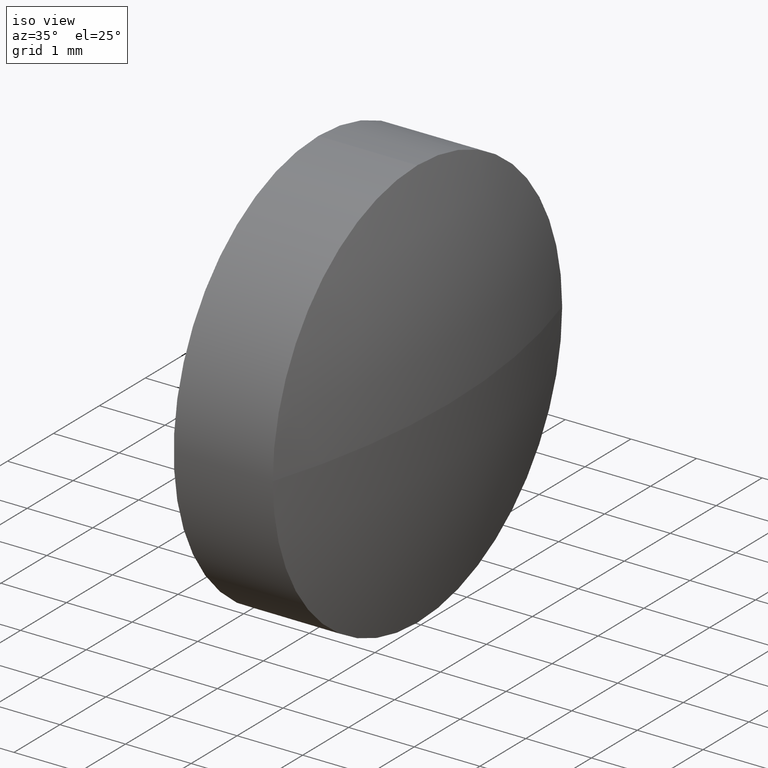
[diagram: clean part render]
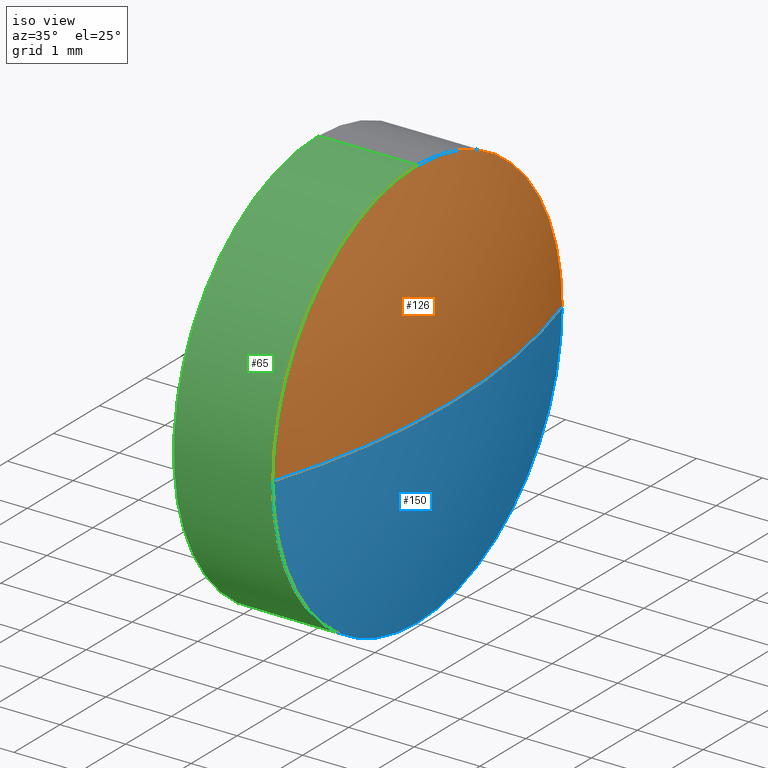
[diagram: same view with three faces highlighted in distinct colors, each labeled with its STEP entity id]
A machine part, iso view with three faces highlighted in distinct colors.
Their STEP definitions:

[orange] entity #126 — the highlighted spherical surface has radius 10.37 mm.
#1 = CARTESIAN_POINT ( 'NONE',  ( 499.5865941383895000, 112.7888820155200000, 0.0000000000000000000 ) ) ;
#6 = DIRECTION ( 'NONE',  ( -0.0000000000000000000, 0.0000000000000000000, 1.000000000000000000 ) ) ;
#12 = FACE_OUTER_BOUND ( 'NONE', #133, .T. ) ;
#17 = CARTESIAN_POINT ( 'NONE',  ( 499.0965941383895500, 112.7888820155200200, 0.0000000000000000000 ) ) ;
#21 = DIRECTION ( 'NONE',  ( 1.000000000000000000, 0.0000000000000000000, 0.0000000000000000000 ) ) ;
#22 = EDGE_CURVE ( 'NONE', #118, #127, #58, .T. ) ;
#36 = CIRCLE ( 'NONE', #124, 10.36999999999999000 ) ;
#38 = VERTEX_POINT ( 'NONE', #84 ) ;
#51 = DIRECTION ( 'NONE',  ( 0.0000000000000000000, 0.0000000000000000000, 1.000000000000000000 ) ) ;
#53 = CARTESIAN_POINT ( 'NONE',  ( 499.0965941383895500, 112.7888820155200200, 0.0000000000000000000 ) ) ;
#57 = CARTESIAN_POINT ( 'NONE',  ( 489.2165941383895500, 112.7888820155200000, 0.0000000000000000000 ) ) ;
#58 = CIRCLE ( 'NONE', #170, 10.36999999999999000 ) ;
#63 = EDGE_CURVE ( 'NONE', #123, #127, #94, .T. ) ;
#66 = CARTESIAN_POINT ( 'NONE',  ( 499.0965941383895500, 115.9388820155200200, 0.0000000000000000000 ) ) ;
#71 = CARTESIAN_POINT ( 'NONE',  ( 499.0965941383895500, 112.7888820155200200, 3.149999999999999900 ) ) ;
#76 = EDGE_CURVE ( 'NONE', #38, #123, #135, .T. ) ;
#82 = DIRECTION ( 'NONE',  ( -1.000000000000000000, -0.0000000000000000000, -0.0000000000000000000 ) ) ;
#84 = CARTESIAN_POINT ( 'NONE',  ( 499.0965941383895500, 109.6388820155200200, -3.857637417314150900E-016 ) ) ;
#93 = DIRECTION ( 'NONE',  ( -1.000000000000000000, -0.0000000000000000000, -0.0000000000000000000 ) ) ;
#94 = CIRCLE ( 'NONE', #105, 3.149999999999999900 ) ;
#105 = AXIS2_PLACEMENT_3D ( 'NONE', #17, #82, #51 ) ;
#116 = DIRECTION ( 'NONE',  ( 0.0000000000000000000, 1.000000000000000000, 1.224646799147353900E-016 ) ) ;
#118 = VERTEX_POINT ( 'NONE', #1 ) ;
#119 = AXIS2_PLACEMENT_3D ( 'NONE', #53, #93, #147 ) ;
#120 = AXIS2_PLACEMENT_3D ( 'NONE', #57, #125, #155 ) ;
#123 = VERTEX_POINT ( 'NONE', #71 ) ;
#124 = AXIS2_PLACEMENT_3D ( 'NONE', #153, #165, #116 ) ;
#125 = DIRECTION ( 'NONE',  ( -0.0000000000000000000, 0.0000000000000000000, -1.000000000000000000 ) ) ;
#126 = ADVANCED_FACE ( 'NONE', ( #12 ), #160, .T. ) ;
#127 = VERTEX_POINT ( 'NONE', #66 ) ;
#133 = EDGE_LOOP ( 'NONE', ( #144, #176, #158, #184 ) ) ;
#135 = CIRCLE ( 'NONE', #119, 3.149999999999999900 ) ;
#144 = ORIENTED_EDGE ( 'NONE', *, *, #162, .F. ) ;
#147 = DIRECTION ( 'NONE',  ( 0.0000000000000000000, 0.0000000000000000000, 1.000000000000000000 ) ) ;
#153 = CARTESIAN_POINT ( 'NONE',  ( 489.2165941383895500, 112.7888820155200000, 0.0000000000000000000 ) ) ;
#155 = DIRECTION ( 'NONE',  ( 0.0000000000000000000, 1.000000000000000000, 0.0000000000000000000 ) ) ;
#158 = ORIENTED_EDGE ( 'NONE', *, *, #63, .F. ) ;
#160 = SPHERICAL_SURFACE ( 'NONE', #120, 10.36999999999999700 ) ;
#162 = EDGE_CURVE ( 'NONE', #118, #38, #36, .T. ) ;
#165 = DIRECTION ( 'NONE',  ( 0.0000000000000000000, 1.224646799147353200E-016, -1.000000000000000000 ) ) ;
#170 = AXIS2_PLACEMENT_3D ( 'NONE', #172, #6, #21 ) ;
#172 = CARTESIAN_POINT ( 'NONE',  ( 489.2165941383895500, 112.7888820155200000, 0.0000000000000000000 ) ) ;
#176 = ORIENTED_EDGE ( 'NONE', *, *, #22, .T. ) ;
#184 = ORIENTED_EDGE ( 'NONE', *, *, #76, .F. ) ;

[blue] entity #150 — the highlighted spherical surface has radius 10.37 mm.
#1 = CARTESIAN_POINT ( 'NONE',  ( 499.5865941383895000, 112.7888820155200000, 0.0000000000000000000 ) ) ;
#4 = CARTESIAN_POINT ( 'NONE',  ( 499.0965941383895500, 112.7888820155200200, 0.0000000000000000000 ) ) ;
#6 = DIRECTION ( 'NONE',  ( -0.0000000000000000000, 0.0000000000000000000, 1.000000000000000000 ) ) ;
#10 = CIRCLE ( 'NONE', #114, 3.149999999999999900 ) ;
#11 = DIRECTION ( 'NONE',  ( -1.000000000000000000, -0.0000000000000000000, -0.0000000000000000000 ) ) ;
#21 = DIRECTION ( 'NONE',  ( 1.000000000000000000, 0.0000000000000000000, 0.0000000000000000000 ) ) ;
#22 = EDGE_CURVE ( 'NONE', #118, #127, #58, .T. ) ;
#26 = DIRECTION ( 'NONE',  ( -0.0000000000000000000, 0.0000000000000000000, -1.000000000000000000 ) ) ;
#36 = CIRCLE ( 'NONE', #124, 10.36999999999999000 ) ;
#38 = VERTEX_POINT ( 'NONE', #84 ) ;
#42 = ORIENTED_EDGE ( 'NONE', *, *, #162, .T. ) ;
#44 = DIRECTION ( 'NONE',  ( 0.0000000000000000000, 0.0000000000000000000, 1.000000000000000000 ) ) ;
#49 = ORIENTED_EDGE ( 'NONE', *, *, #91, .F. ) ;
#58 = CIRCLE ( 'NONE', #170, 10.36999999999999000 ) ;
#66 = CARTESIAN_POINT ( 'NONE',  ( 499.0965941383895500, 115.9388820155200200, 0.0000000000000000000 ) ) ;
#67 = AXIS2_PLACEMENT_3D ( 'NONE', #164, #26, #177 ) ;
#72 = ORIENTED_EDGE ( 'NONE', *, *, #157, .F. ) ;
#84 = CARTESIAN_POINT ( 'NONE',  ( 499.0965941383895500, 109.6388820155200200, -3.857637417314150900E-016 ) ) ;
#85 = EDGE_LOOP ( 'NONE', ( #115, #42, #72, #49 ) ) ;
#89 = DIRECTION ( 'NONE',  ( 0.0000000000000000000, 0.0000000000000000000, 1.000000000000000000 ) ) ;
#91 = EDGE_CURVE ( 'NONE', #127, #180, #161, .T. ) ;
#98 = CARTESIAN_POINT ( 'NONE',  ( 499.0965941383895500, 112.7888820155200200, -3.149999999999999900 ) ) ;
#113 = FACE_OUTER_BOUND ( 'NONE', #85, .T. ) ;
#114 = AXIS2_PLACEMENT_3D ( 'NONE', #181, #11, #44 ) ;
#115 = ORIENTED_EDGE ( 'NONE', *, *, #22, .F. ) ;
#116 = DIRECTION ( 'NONE',  ( 0.0000000000000000000, 1.000000000000000000, 1.224646799147353900E-016 ) ) ;
#118 = VERTEX_POINT ( 'NONE', #1 ) ;
#124 = AXIS2_PLACEMENT_3D ( 'NONE', #153, #165, #116 ) ;
#127 = VERTEX_POINT ( 'NONE', #66 ) ;
#128 = AXIS2_PLACEMENT_3D ( 'NONE', #4, #140, #89 ) ;
#131 = SPHERICAL_SURFACE ( 'NONE', #67, 10.36999999999999700 ) ;
#140 = DIRECTION ( 'NONE',  ( -1.000000000000000000, -0.0000000000000000000, -0.0000000000000000000 ) ) ;
#150 = ADVANCED_FACE ( 'NONE', ( #113 ), #131, .T. ) ;
#153 = CARTESIAN_POINT ( 'NONE',  ( 489.2165941383895500, 112.7888820155200000, 0.0000000000000000000 ) ) ;
#157 = EDGE_CURVE ( 'NONE', #180, #38, #10, .T. ) ;
#161 = CIRCLE ( 'NONE', #128, 3.149999999999999900 ) ;
#162 = EDGE_CURVE ( 'NONE', #118, #38, #36, .T. ) ;
#164 = CARTESIAN_POINT ( 'NONE',  ( 489.2165941383895500, 112.7888820155200000, 0.0000000000000000000 ) ) ;
#165 = DIRECTION ( 'NONE',  ( 0.0000000000000000000, 1.224646799147353200E-016, -1.000000000000000000 ) ) ;
#170 = AXIS2_PLACEMENT_3D ( 'NONE', #172, #6, #21 ) ;
#172 = CARTESIAN_POINT ( 'NONE',  ( 489.2165941383895500, 112.7888820155200000, 0.0000000000000000000 ) ) ;
#177 = DIRECTION ( 'NONE',  ( 0.0000000000000000000, 1.000000000000000000, 0.0000000000000000000 ) ) ;
#180 = VERTEX_POINT ( 'NONE', #98 ) ;
#181 = CARTESIAN_POINT ( 'NONE',  ( 499.0965941383895500, 112.7888820155200200, 0.0000000000000000000 ) ) ;

[green] entity #65 — the highlighted cylindrical surface (partial cylindrical patch) has radius 3.15 mm, axis along (-1, -0, -0).
#10 = CIRCLE ( 'NONE', #114, 3.149999999999999900 ) ;
#11 = DIRECTION ( 'NONE',  ( -1.000000000000000000, -0.0000000000000000000, -0.0000000000000000000 ) ) ;
#14 = FACE_OUTER_BOUND ( 'NONE', #40, .T. ) ;
#15 = ORIENTED_EDGE ( 'NONE', *, *, #157, .T. ) ;
#16 = EDGE_CURVE ( 'NONE', #123, #110, #154, .T. ) ;
#18 = CYLINDRICAL_SURFACE ( 'NONE', #27, 3.149999999999999900 ) ;
#25 = VECTOR ( 'NONE', #166, 1000.000000000000000 ) ;
#27 = AXIS2_PLACEMENT_3D ( 'NONE', #174, #32, #92 ) ;
#32 = DIRECTION ( 'NONE',  ( -1.000000000000000000, -0.0000000000000000000, -0.0000000000000000000 ) ) ;
#35 = EDGE_CURVE ( 'NONE', #186, #110, #136, .T. ) ;
#38 = VERTEX_POINT ( 'NONE', #84 ) ;
#39 = CARTESIAN_POINT ( 'NONE',  ( 497.5865941383895000, 112.7888820155200200, -3.149999999999999900 ) ) ;
#40 = EDGE_LOOP ( 'NONE', ( #87, #15, #175, #151, #138 ) ) ;
#44 = DIRECTION ( 'NONE',  ( 0.0000000000000000000, 0.0000000000000000000, 1.000000000000000000 ) ) ;
#48 = EDGE_CURVE ( 'NONE', #180, #186, #141, .T. ) ;
#53 = CARTESIAN_POINT ( 'NONE',  ( 499.0965941383895500, 112.7888820155200200, 0.0000000000000000000 ) ) ;
#55 = CARTESIAN_POINT ( 'NONE',  ( 497.5865941383895000, 112.7888820155200200, 3.149999999999999900 ) ) ;
#56 = CARTESIAN_POINT ( 'NONE',  ( 479.1000143024504000, 112.7888820155200200, -3.149999999999999900 ) ) ;
#60 = AXIS2_PLACEMENT_3D ( 'NONE', #97, #109, #122 ) ;
#65 = ADVANCED_FACE ( 'NONE', ( #14 ), #18, .T. ) ;
#71 = CARTESIAN_POINT ( 'NONE',  ( 499.0965941383895500, 112.7888820155200200, 3.149999999999999900 ) ) ;
#76 = EDGE_CURVE ( 'NONE', #38, #123, #135, .T. ) ;
#84 = CARTESIAN_POINT ( 'NONE',  ( 499.0965941383895500, 109.6388820155200200, -3.857637417314150900E-016 ) ) ;
#87 = ORIENTED_EDGE ( 'NONE', *, *, #48, .F. ) ;
#92 = DIRECTION ( 'NONE',  ( 0.0000000000000000000, 0.0000000000000000000, 1.000000000000000000 ) ) ;
#93 = DIRECTION ( 'NONE',  ( -1.000000000000000000, -0.0000000000000000000, -0.0000000000000000000 ) ) ;
#97 = CARTESIAN_POINT ( 'NONE',  ( 497.5865941383895000, 112.7888820155200200, 0.0000000000000000000 ) ) ;
#98 = CARTESIAN_POINT ( 'NONE',  ( 499.0965941383895500, 112.7888820155200200, -3.149999999999999900 ) ) ;
#109 = DIRECTION ( 'NONE',  ( -1.000000000000000000, -0.0000000000000000000, -0.0000000000000000000 ) ) ;
#110 = VERTEX_POINT ( 'NONE', #55 ) ;
#114 = AXIS2_PLACEMENT_3D ( 'NONE', #181, #11, #44 ) ;
#117 = CARTESIAN_POINT ( 'NONE',  ( 479.1000143024504000, 112.7888820155200200, 3.149999999999999900 ) ) ;
#119 = AXIS2_PLACEMENT_3D ( 'NONE', #53, #93, #147 ) ;
#122 = DIRECTION ( 'NONE',  ( 0.0000000000000000000, 0.0000000000000000000, 1.000000000000000000 ) ) ;
#123 = VERTEX_POINT ( 'NONE', #71 ) ;
#135 = CIRCLE ( 'NONE', #119, 3.149999999999999900 ) ;
#136 = CIRCLE ( 'NONE', #60, 3.149999999999999900 ) ;
#138 = ORIENTED_EDGE ( 'NONE', *, *, #35, .F. ) ;
#141 = LINE ( 'NONE', #56, #178 ) ;
#146 = DIRECTION ( 'NONE',  ( -1.000000000000000000, -0.0000000000000000000, -0.0000000000000000000 ) ) ;
#147 = DIRECTION ( 'NONE',  ( 0.0000000000000000000, 0.0000000000000000000, 1.000000000000000000 ) ) ;
#151 = ORIENTED_EDGE ( 'NONE', *, *, #16, .T. ) ;
#154 = LINE ( 'NONE', #117, #25 ) ;
#157 = EDGE_CURVE ( 'NONE', #180, #38, #10, .T. ) ;
#166 = DIRECTION ( 'NONE',  ( -1.000000000000000000, -0.0000000000000000000, -0.0000000000000000000 ) ) ;
#174 = CARTESIAN_POINT ( 'NONE',  ( 479.1000143024504000, 112.7888820155200200, 0.0000000000000000000 ) ) ;
#175 = ORIENTED_EDGE ( 'NONE', *, *, #76, .T. ) ;
#178 = VECTOR ( 'NONE', #146, 1000.000000000000000 ) ;
#180 = VERTEX_POINT ( 'NONE', #98 ) ;
#181 = CARTESIAN_POINT ( 'NONE',  ( 499.0965941383895500, 112.7888820155200200, 0.0000000000000000000 ) ) ;
#186 = VERTEX_POINT ( 'NONE', #39 ) ;